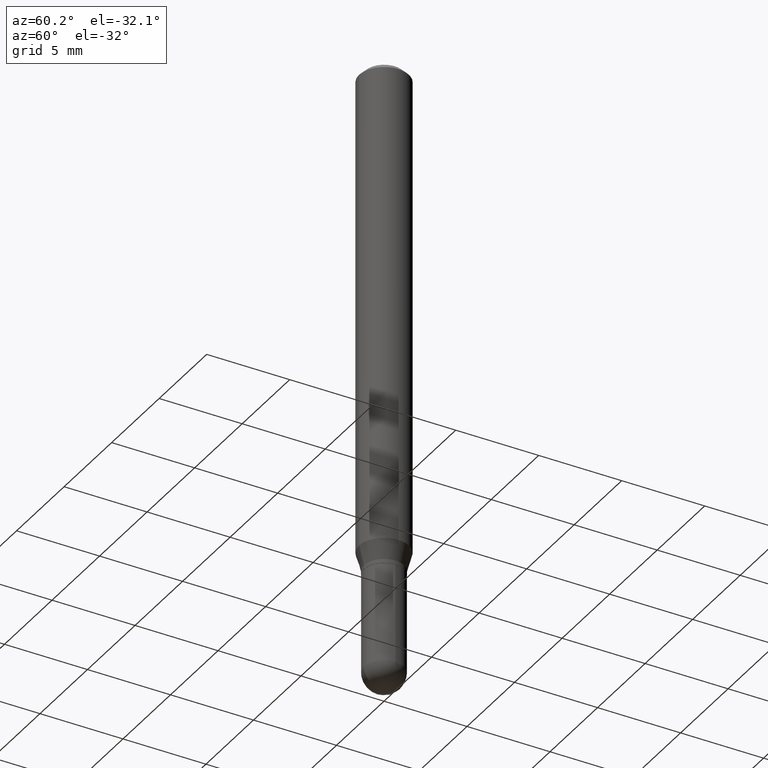
[diagram: clean part render]
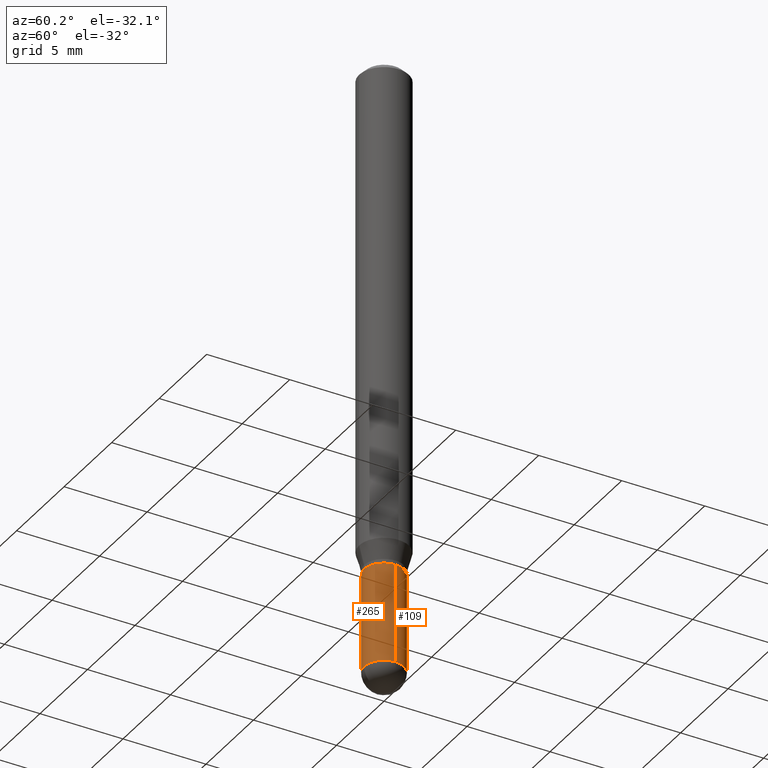
[diagram: same view with one multi-face feature highlighted, each face labeled with its STEP entity id]
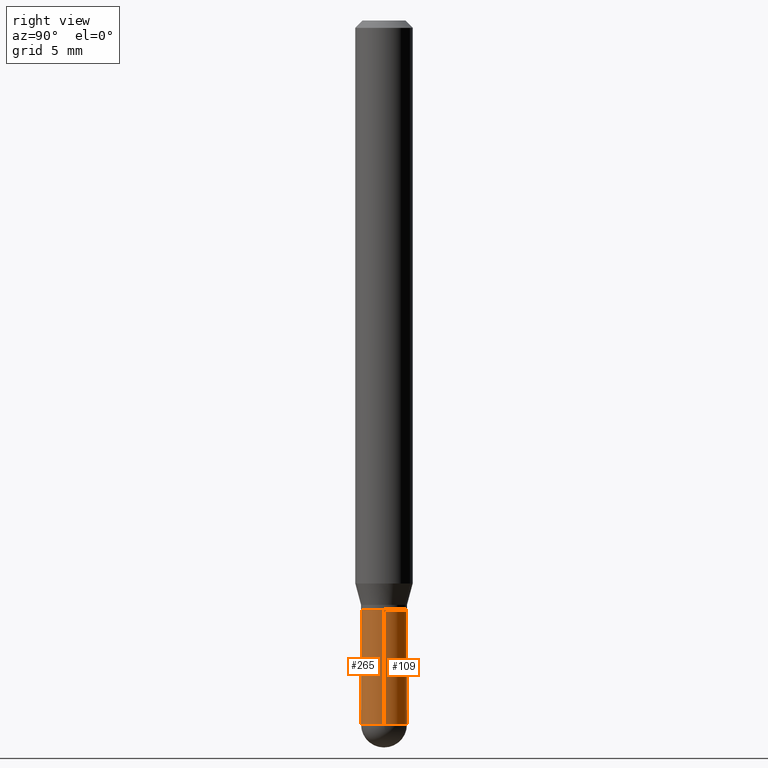
[diagram: same view with one multi-face feature highlighted, each face labeled with its STEP entity id]
A machine part, auxiliary view. The highlighted faces form ONE feature: a constant-radius fillet chain: 2 tangent blend faces with common blend radius 1.2001 mm. The faces share edges in the B-rep.
A second angle (right view) of the same feature is appended — it is thin or edge-on in the first view.
Their STEP definitions:
[1] entity #109 (Cylinder):
#8 = CARTESIAN_POINT ( 'NONE',  ( 3.543117479841335070E-29, -5.058632737782891656E-15, -1.448849999999999971 ) ) ;
#12 = AXIS2_PLACEMENT_3D ( 'NONE', #488, #248, #29 ) ;
#29 = DIRECTION ( 'NONE',  ( 1.000000000000000000, -6.982962677686266711E-15, 4.876176775795935793E-29 ) ) ;
#31 = CIRCLE ( 'NONE', #208, 0.04724999999999998646 ) ;
#35 = AXIS2_PLACEMENT_3D ( 'NONE', #8, #171, #333 ) ;
#71 = VERTEX_POINT ( 'NONE', #188 ) ;
#83 = EDGE_CURVE ( 'NONE', #252, #71, #401, .T. ) ;
#84 = EDGE_CURVE ( 'NONE', #370, #247, #317, .T. ) ;
#87 = VECTOR ( 'NONE', #456, 39.37007874015748143 ) ;
#91 = CARTESIAN_POINT ( 'NONE',  ( 3.543117479841335070E-29, -5.058632737782891656E-15, -1.448849999999999971 ) ) ;
#92 = EDGE_CURVE ( 'NONE', #370, #252, #454, .T. ) ;
#109 = ADVANCED_FACE ( 'NONE', ( #184 ), #286, .T. ) ;
#136 = DIRECTION ( 'NONE',  ( 1.000000000000000000, -6.982962677686256455E-15, 0.000000000000000000 ) ) ;
#150 = EDGE_CURVE ( 'NONE', #205, #71, #483, .T. ) ;
#153 = VECTOR ( 'NONE', #210, 39.37007874015748143 ) ;
#155 = CARTESIAN_POINT ( 'NONE',  ( 3.357314426466824445E-16, 0.04724999999999490025, -1.448850000000000415 ) ) ;
#169 = ORIENTED_EDGE ( 'NONE', *, *, #83, .F. ) ;
#171 = DIRECTION ( 'NONE',  ( -2.445468806185136597E-29, 3.491481338843145583E-15, 1.000000000000000000 ) ) ;
#184 = FACE_OUTER_BOUND ( 'NONE', #461, .T. ) ;
#188 = CARTESIAN_POINT ( 'NONE',  ( -0.04724999999999999339, -4.310470061985398025E-15, -1.212599999999999900 ) ) ;
#203 = ORIENTED_EDGE ( 'NONE', *, *, #358, .T. ) ;
#205 = VERTEX_POINT ( 'NONE', #360 ) ;
#208 = AXIS2_PLACEMENT_3D ( 'NONE', #91, #327, #484 ) ;
#210 = DIRECTION ( 'NONE',  ( -2.445468806185136877E-29, 3.491481338843145188E-15, 1.000000000000000000 ) ) ;
#244 = CARTESIAN_POINT ( 'NONE',  ( -0.04724999999999998646, 3.357314426466472416E-16, -2.324196830145442465E-30 ) ) ;
#247 = VERTEX_POINT ( 'NONE', #155 ) ;
#248 = DIRECTION ( 'NONE',  ( -2.445468806185136597E-29, 3.491481338843145583E-15, 1.000000000000000000 ) ) ;
#252 = VERTEX_POINT ( 'NONE', #473 ) ;
#256 = CARTESIAN_POINT ( 'NONE',  ( 0.04724999999999998646, -4.976146491152720682E-15, -1.448849999999999971 ) ) ;
#286 = CYLINDRICAL_SURFACE ( 'NONE', #12, 0.04724999999999998646 ) ;
#317 = CIRCLE ( 'NONE', #35, 0.04724999999999998646 ) ;
#322 = AXIS2_PLACEMENT_3D ( 'NONE', #495, #341, #136 ) ;
#327 = DIRECTION ( 'NONE',  ( -2.445468806185136597E-29, 3.491481338843145583E-15, 1.000000000000000000 ) ) ;
#333 = DIRECTION ( 'NONE',  ( 1.000000000000000000, -6.982962677686267499E-15, 0.000000000000000000 ) ) ;
#341 = DIRECTION ( 'NONE',  ( -2.445468806185136597E-29, 3.491481338843145583E-15, 1.000000000000000000 ) ) ;
#358 = EDGE_CURVE ( 'NONE', #247, #205, #31, .T. ) ;
#360 = CARTESIAN_POINT ( 'NONE',  ( -0.04724999999999998646, -4.310470061985398025E-15, -1.448849999999999971 ) ) ;
#370 = VERTEX_POINT ( 'NONE', #256 ) ;
#385 = CARTESIAN_POINT ( 'NONE',  ( 0.04724999999999998646, -3.299449865206760074E-16, 2.303993526563579130E-30 ) ) ;
#401 = CIRCLE ( 'NONE', #322, 0.04724999999999999339 ) ;
#415 = ORIENTED_EDGE ( 'NONE', *, *, #84, .T. ) ;
#418 = ORIENTED_EDGE ( 'NONE', *, *, #150, .T. ) ;
#443 = ORIENTED_EDGE ( 'NONE', *, *, #92, .F. ) ;
#454 = LINE ( 'NONE', #385, #87 ) ;
#456 = DIRECTION ( 'NONE',  ( -2.445468806185136877E-29, 3.491481338843145188E-15, 1.000000000000000000 ) ) ;
#461 = EDGE_LOOP ( 'NONE', ( #203, #418, #169, #443, #415 ) ) ;
#473 = CARTESIAN_POINT ( 'NONE',  ( 0.04724999999999999339, -4.563715258001873701E-15, -1.212599999999999900 ) ) ;
#483 = LINE ( 'NONE', #244, #153 ) ;
#484 = DIRECTION ( 'NONE',  ( 1.000000000000000000, -6.982962677686267499E-15, 0.000000000000000000 ) ) ;
#488 = CARTESIAN_POINT ( 'NONE',  ( 0.000000000000000000, 0.000000000000000000, 0.000000000000000000 ) ) ;
#495 = CARTESIAN_POINT ( 'NONE',  ( 2.965375474380096235E-29, -4.233770271481197693E-15, -1.212599999999999900 ) ) ;
[2] entity #265 (Cylinder):
#27 = ORIENTED_EDGE ( 'NONE', *, *, #196, .F. ) ;
#54 = FACE_OUTER_BOUND ( 'NONE', #282, .T. ) ;
#65 = DIRECTION ( 'NONE',  ( -2.445468806185136597E-29, 3.491481338843145583E-15, 1.000000000000000000 ) ) ;
#71 = VERTEX_POINT ( 'NONE', #188 ) ;
#80 = CARTESIAN_POINT ( 'NONE',  ( 0.000000000000000000, 0.000000000000000000, 0.000000000000000000 ) ) ;
#87 = VECTOR ( 'NONE', #456, 39.37007874015748143 ) ;
#92 = EDGE_CURVE ( 'NONE', #370, #252, #454, .T. ) ;
#102 = CARTESIAN_POINT ( 'NONE',  ( -3.299449865206404101E-16, -0.04725000000000502409, -1.448849999999999749 ) ) ;
#106 = CIRCLE ( 'NONE', #293, 0.04724999999999998646 ) ;
#124 = DIRECTION ( 'NONE',  ( -2.445468806185136597E-29, 3.491481338843145583E-15, 1.000000000000000000 ) ) ;
#150 = EDGE_CURVE ( 'NONE', #205, #71, #483, .T. ) ;
#153 = VECTOR ( 'NONE', #210, 39.37007874015748143 ) ;
#174 = DIRECTION ( 'NONE',  ( -2.445468806185136597E-29, 3.491481338843145583E-15, 1.000000000000000000 ) ) ;
#186 = EDGE_CURVE ( 'NONE', #205, #288, #449, .T. ) ;
#188 = CARTESIAN_POINT ( 'NONE',  ( -0.04724999999999999339, -4.310470061985398025E-15, -1.212599999999999900 ) ) ;
#196 = EDGE_CURVE ( 'NONE', #71, #252, #279, .T. ) ;
#205 = VERTEX_POINT ( 'NONE', #360 ) ;
#206 = DIRECTION ( 'NONE',  ( -2.445468806185136597E-29, 3.491481338843145583E-15, 1.000000000000000000 ) ) ;
#209 = DIRECTION ( 'NONE',  ( 1.000000000000000000, -6.982962677686266711E-15, 4.876176775795935793E-29 ) ) ;
#210 = DIRECTION ( 'NONE',  ( -2.445468806185136877E-29, 3.491481338843145188E-15, 1.000000000000000000 ) ) ;
#238 = AXIS2_PLACEMENT_3D ( 'NONE', #80, #174, #209 ) ;
#244 = CARTESIAN_POINT ( 'NONE',  ( -0.04724999999999998646, 3.357314426466472416E-16, -2.324196830145442465E-30 ) ) ;
#252 = VERTEX_POINT ( 'NONE', #473 ) ;
#256 = CARTESIAN_POINT ( 'NONE',  ( 0.04724999999999998646, -4.976146491152720682E-15, -1.448849999999999971 ) ) ;
#265 = ADVANCED_FACE ( 'NONE', ( #54 ), #493, .T. ) ;
#279 = CIRCLE ( 'NONE', #429, 0.04724999999999999339 ) ;
#282 = EDGE_LOOP ( 'NONE', ( #490, #382, #363, #413, #27 ) ) ;
#288 = VERTEX_POINT ( 'NONE', #102 ) ;
#293 = AXIS2_PLACEMENT_3D ( 'NONE', #331, #124, #419 ) ;
#331 = CARTESIAN_POINT ( 'NONE',  ( 3.543117479841335070E-29, -5.058632737782891656E-15, -1.448849999999999971 ) ) ;
#336 = CARTESIAN_POINT ( 'NONE',  ( 3.543117479841335070E-29, -5.058632737782891656E-15, -1.448849999999999971 ) ) ;
#356 = CARTESIAN_POINT ( 'NONE',  ( 2.965375474380096235E-29, -4.233770271481197693E-15, -1.212599999999999900 ) ) ;
#360 = CARTESIAN_POINT ( 'NONE',  ( -0.04724999999999998646, -4.310470061985398025E-15, -1.448849999999999971 ) ) ;
#363 = ORIENTED_EDGE ( 'NONE', *, *, #400, .T. ) ;
#366 = AXIS2_PLACEMENT_3D ( 'NONE', #336, #206, #377 ) ;
#370 = VERTEX_POINT ( 'NONE', #256 ) ;
#377 = DIRECTION ( 'NONE',  ( 1.000000000000000000, -6.982962677686267499E-15, 0.000000000000000000 ) ) ;
#382 = ORIENTED_EDGE ( 'NONE', *, *, #186, .T. ) ;
#385 = CARTESIAN_POINT ( 'NONE',  ( 0.04724999999999998646, -3.299449865206760074E-16, 2.303993526563579130E-30 ) ) ;
#400 = EDGE_CURVE ( 'NONE', #288, #370, #106, .T. ) ;
#413 = ORIENTED_EDGE ( 'NONE', *, *, #92, .T. ) ;
#419 = DIRECTION ( 'NONE',  ( 1.000000000000000000, -6.982962677686267499E-15, 0.000000000000000000 ) ) ;
#429 = AXIS2_PLACEMENT_3D ( 'NONE', #356, #65, #433 ) ;
#433 = DIRECTION ( 'NONE',  ( 1.000000000000000000, -6.982962677686256455E-15, 0.000000000000000000 ) ) ;
#449 = CIRCLE ( 'NONE', #366, 0.04724999999999998646 ) ;
#454 = LINE ( 'NONE', #385, #87 ) ;
#456 = DIRECTION ( 'NONE',  ( -2.445468806185136877E-29, 3.491481338843145188E-15, 1.000000000000000000 ) ) ;
#473 = CARTESIAN_POINT ( 'NONE',  ( 0.04724999999999999339, -4.563715258001873701E-15, -1.212599999999999900 ) ) ;
#483 = LINE ( 'NONE', #244, #153 ) ;
#490 = ORIENTED_EDGE ( 'NONE', *, *, #150, .F. ) ;
#493 = CYLINDRICAL_SURFACE ( 'NONE', #238, 0.04724999999999998646 ) ;